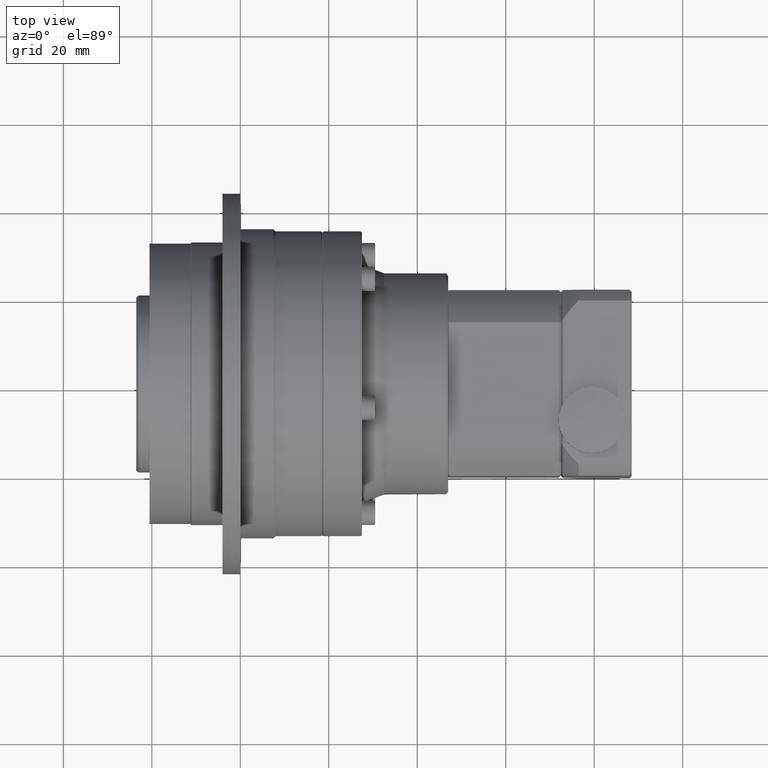
[diagram: clean part render]
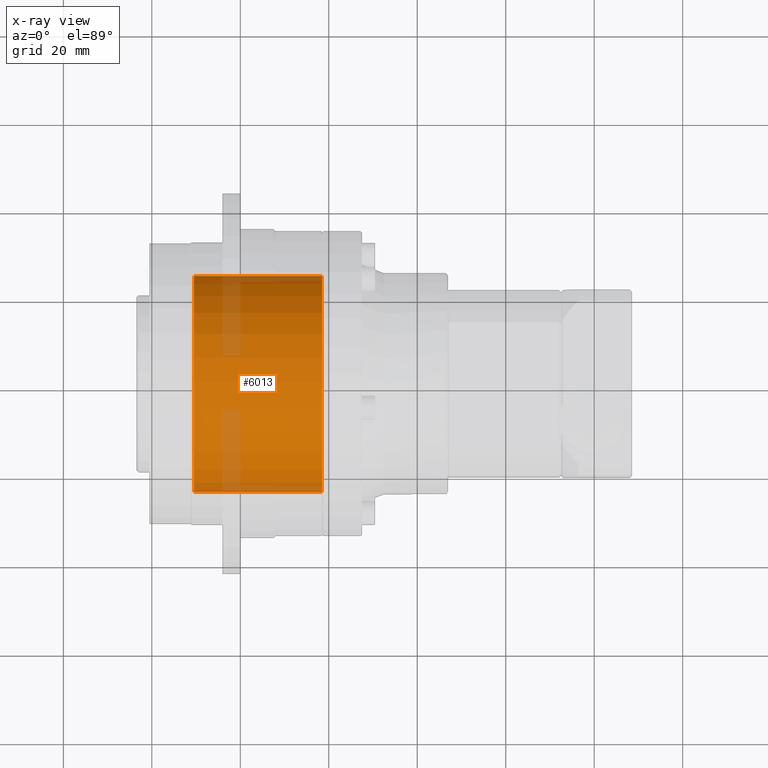
[diagram: x-ray — body ghosted, one internal face saturated and labeled with its STEP entity id]
A machine part, top view, then the same camera in x-ray: the body is ghosted and one INTERNAL B-rep face — a face not visible from any outside direction — is saturated and labeled: STEP entity #6013.
In plain terms, the highlighted cylindrical surface (bore or boss wall) has radius 24.45 mm, axis along (1, 0, 0).
Its self-contained STEP definition (entity closure, byte-faithful):
#1027=FACE_BOUND('',#1800,.T.);
#1332=FACE_OUTER_BOUND('',#1799,.T.);
#1799=EDGE_LOOP('',(#4385));
#1800=EDGE_LOOP('',(#4386));
#2446=CIRCLE('',#6507,24.45);
#2460=CIRCLE('',#6535,24.45);
#2848=VERTEX_POINT('',#9479);
#2862=VERTEX_POINT('',#9521);
#3456=EDGE_CURVE('',#2848,#2848,#2446,.T.);
#3470=EDGE_CURVE('',#2862,#2862,#2460,.T.);
#4385=ORIENTED_EDGE('',*,*,#3470,.T.);
#4386=ORIENTED_EDGE('',*,*,#3456,.F.);
#5548=CYLINDRICAL_SURFACE('',#6536,24.45);
#6013=ADVANCED_FACE('',(#1332,#1027),#5548,.F.);
#6507=AXIS2_PLACEMENT_3D('',#9480,#7493,#7494);
#6535=AXIS2_PLACEMENT_3D('',#9522,#7549,#7550);
#6536=AXIS2_PLACEMENT_3D('',#9523,#7551,#7552);
#7493=DIRECTION('center_axis',(-1.,-6.66133814775025E-16,-5.41298131925173E-16));
#7494=DIRECTION('ref_axis',(5.41298131925257E-16,-1.25885413204685E-13,
-1.));
#7549=DIRECTION('center_axis',(-1.,-6.66133814775025E-16,-5.41298131925173E-16));
#7550=DIRECTION('ref_axis',(5.41298131925257E-16,-1.25885413204685E-13,
-1.));
#7551=DIRECTION('center_axis',(1.,6.66133814775025E-16,5.41298131925173E-16));
#7552=DIRECTION('ref_axis',(5.41298131925257E-16,-1.25885413204685E-13,
-1.));
#9479=CARTESIAN_POINT('',(18.483760532707,-19.2502964923646,44.8316875810056));
#9480=CARTESIAN_POINT('Origin',(18.483760532707,-19.2502964923676,20.3816875810056));
#9521=CARTESIAN_POINT('',(-10.516239467293,-19.2502964923646,44.8316875810055));
#9522=CARTESIAN_POINT('Origin',(-10.516239467293,-19.2502964923677,20.3816875810055));
#9523=CARTESIAN_POINT('Origin',(-20.516239467293,-19.2502964923677,20.3816875810055));